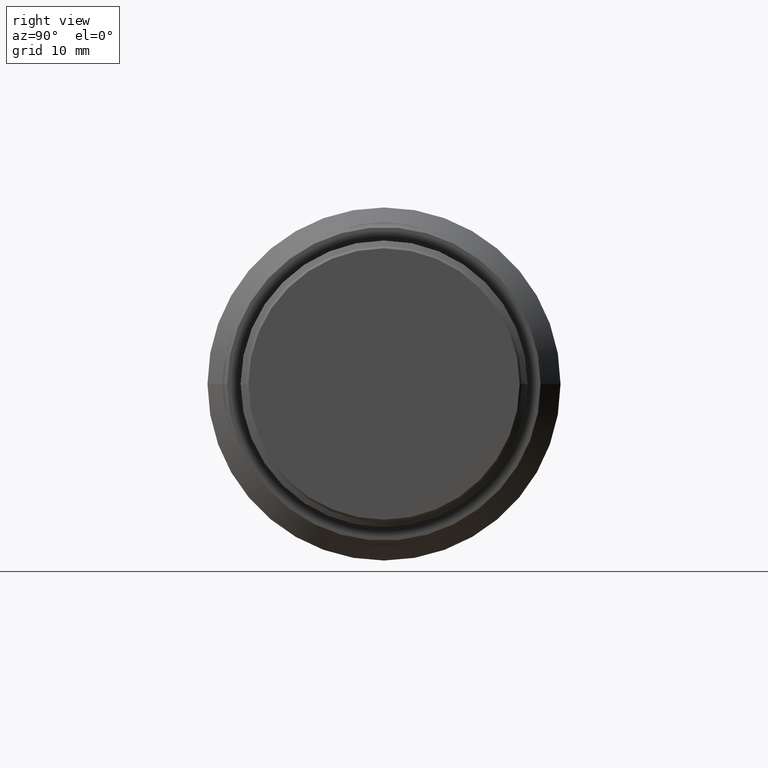
[diagram: clean part render]
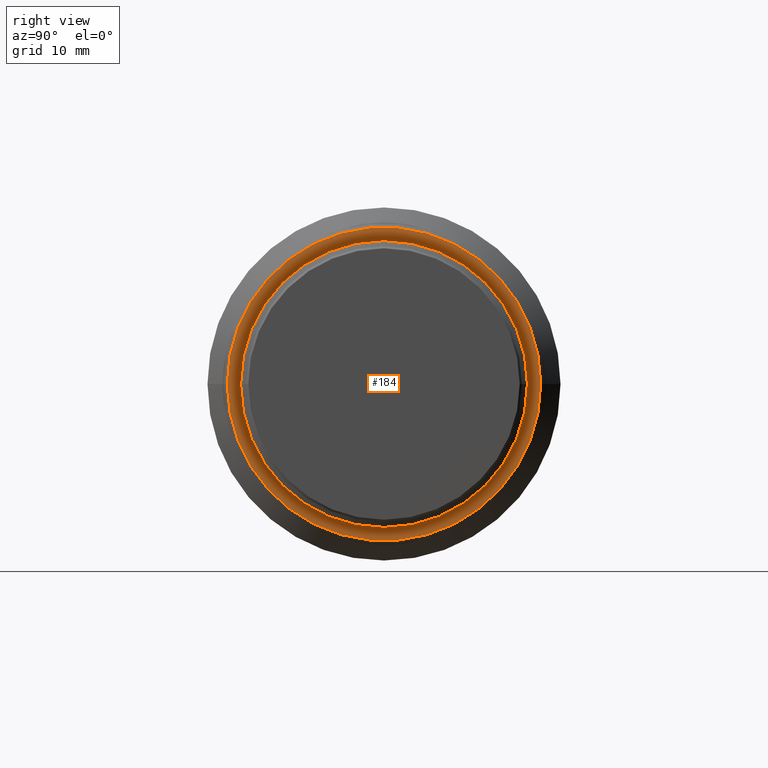
[diagram: same view with one face highlighted and labeled with its STEP entity id]
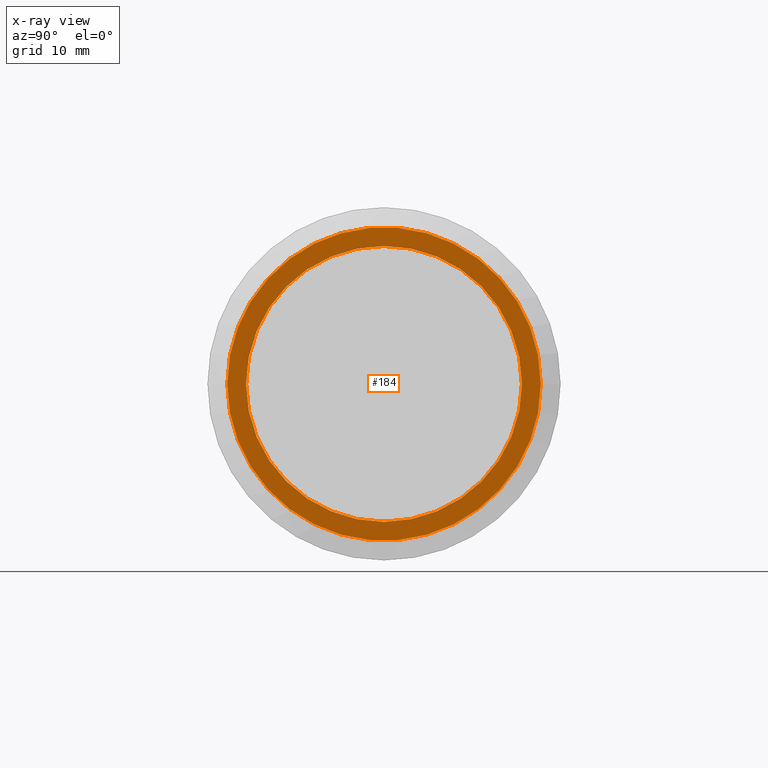
[diagram: x-ray of the same camera — body ghosted, the highlighted face saturated]
A machine part, right view. The second image highlights one B-rep face of the part: STEP entity #184.
The next image is the same camera in x-ray: the body ghosted, the highlighted face saturated — about 0% of this face is hidden behind the body in this view.
In plain terms, the highlighted planar face has unit normal (1, 0, 0).
Its self-contained STEP definition (entity closure, byte-faithful):
#47 = CARTESIAN_POINT ( 'NONE',  ( 44.89877200000000101, 0.000000000000000000, 0.000000000000000000 ) ) ;
#99 = CIRCLE ( 'NONE', #298, 12.50000000000000000 ) ;
#107 = ORIENTED_EDGE ( 'NONE', *, *, #750, .F. ) ;
#112 = FACE_OUTER_BOUND ( 'NONE', #951, .T. ) ;
#133 = ORIENTED_EDGE ( 'NONE', *, *, #1160, .T. ) ;
#145 = EDGE_CURVE ( 'NONE', #862, #1141, #459, .T. ) ;
#159 = EDGE_CURVE ( 'NONE', #648, #217, #99, .T. ) ;
#184 = ADVANCED_FACE ( 'NONE', ( #112, #1276 ), #624, .T. ) ;
#217 = VERTEX_POINT ( 'NONE', #1050 ) ;
#298 = AXIS2_PLACEMENT_3D ( 'NONE', #423, #1292, #1054 ) ;
#362 = DIRECTION ( 'NONE',  ( 1.000000000000000000, 0.000000000000000000, 0.000000000000000000 ) ) ;
#377 = CARTESIAN_POINT ( 'NONE',  ( 44.89877200000000101, -1.530808498934190141E-15, -12.50000000000000000 ) ) ;
#416 = CIRCLE ( 'NONE', #600, 14.20000000000000107 ) ;
#423 = CARTESIAN_POINT ( 'NONE',  ( 44.89877200000000101, 0.000000000000000000, 0.000000000000000000 ) ) ;
#429 = DIRECTION ( 'NONE',  ( 1.000000000000000000, 0.000000000000000000, 0.000000000000000000 ) ) ;
#459 = CIRCLE ( 'NONE', #1309, 14.20000000000000107 ) ;
#481 = EDGE_LOOP ( 'NONE', ( #1206, #107 ) ) ;
#493 = DIRECTION ( 'NONE',  ( 1.000000000000000000, 0.000000000000000000, 0.000000000000000000 ) ) ;
#600 = AXIS2_PLACEMENT_3D ( 'NONE', #1345, #1237, #1319 ) ;
#624 = PLANE ( 'NONE',  #795 ) ;
#648 = VERTEX_POINT ( 'NONE', #377 ) ;
#747 = CARTESIAN_POINT ( 'NONE',  ( 44.89877200000000101, 1.738998454789239972E-15, 14.20000000000000107 ) ) ;
#750 = EDGE_CURVE ( 'NONE', #217, #648, #1066, .T. ) ;
#792 = DIRECTION ( 'NONE',  ( 0.000000000000000000, 1.224646799147350002E-16, 1.000000000000000000 ) ) ;
#795 = AXIS2_PLACEMENT_3D ( 'NONE', #1174, #429, #861 ) ;
#822 = AXIS2_PLACEMENT_3D ( 'NONE', #47, #362, #792 ) ;
#861 = DIRECTION ( 'NONE',  ( 0.000000000000000000, 1.000000000000000000, 0.000000000000000000 ) ) ;
#862 = VERTEX_POINT ( 'NONE', #747 ) ;
#870 = DIRECTION ( 'NONE',  ( 0.000000000000000000, 1.224646799147350002E-16, 1.000000000000000000 ) ) ;
#951 = EDGE_LOOP ( 'NONE', ( #133, #1324 ) ) ;
#1024 = CARTESIAN_POINT ( 'NONE',  ( 44.89877200000000101, 0.000000000000000000, 0.000000000000000000 ) ) ;
#1050 = CARTESIAN_POINT ( 'NONE',  ( 44.89877200000000101, 3.061616997868379887E-15, 12.50000000000000000 ) ) ;
#1054 = DIRECTION ( 'NONE',  ( 0.000000000000000000, 1.224646799147350002E-16, 1.000000000000000000 ) ) ;
#1066 = CIRCLE ( 'NONE', #822, 12.50000000000000000 ) ;
#1141 = VERTEX_POINT ( 'NONE', #1228 ) ;
#1160 = EDGE_CURVE ( 'NONE', #1141, #862, #416, .T. ) ;
#1174 = CARTESIAN_POINT ( 'NONE',  ( 44.89877200000000101, 1.634903476861719987E-15, 13.35000000000000142 ) ) ;
#1206 = ORIENTED_EDGE ( 'NONE', *, *, #159, .F. ) ;
#1228 = CARTESIAN_POINT ( 'NONE',  ( 44.89877200000000101, 0.000000000000000000, -14.20000000000000107 ) ) ;
#1237 = DIRECTION ( 'NONE',  ( 1.000000000000000000, 0.000000000000000000, 0.000000000000000000 ) ) ;
#1276 = FACE_BOUND ( 'NONE', #481, .T. ) ;
#1292 = DIRECTION ( 'NONE',  ( 1.000000000000000000, 0.000000000000000000, 0.000000000000000000 ) ) ;
#1309 = AXIS2_PLACEMENT_3D ( 'NONE', #1024, #493, #870 ) ;
#1319 = DIRECTION ( 'NONE',  ( 0.000000000000000000, 1.224646799147350002E-16, 1.000000000000000000 ) ) ;
#1324 = ORIENTED_EDGE ( 'NONE', *, *, #145, .T. ) ;
#1345 = CARTESIAN_POINT ( 'NONE',  ( 44.89877200000000101, 0.000000000000000000, 0.000000000000000000 ) ) ;